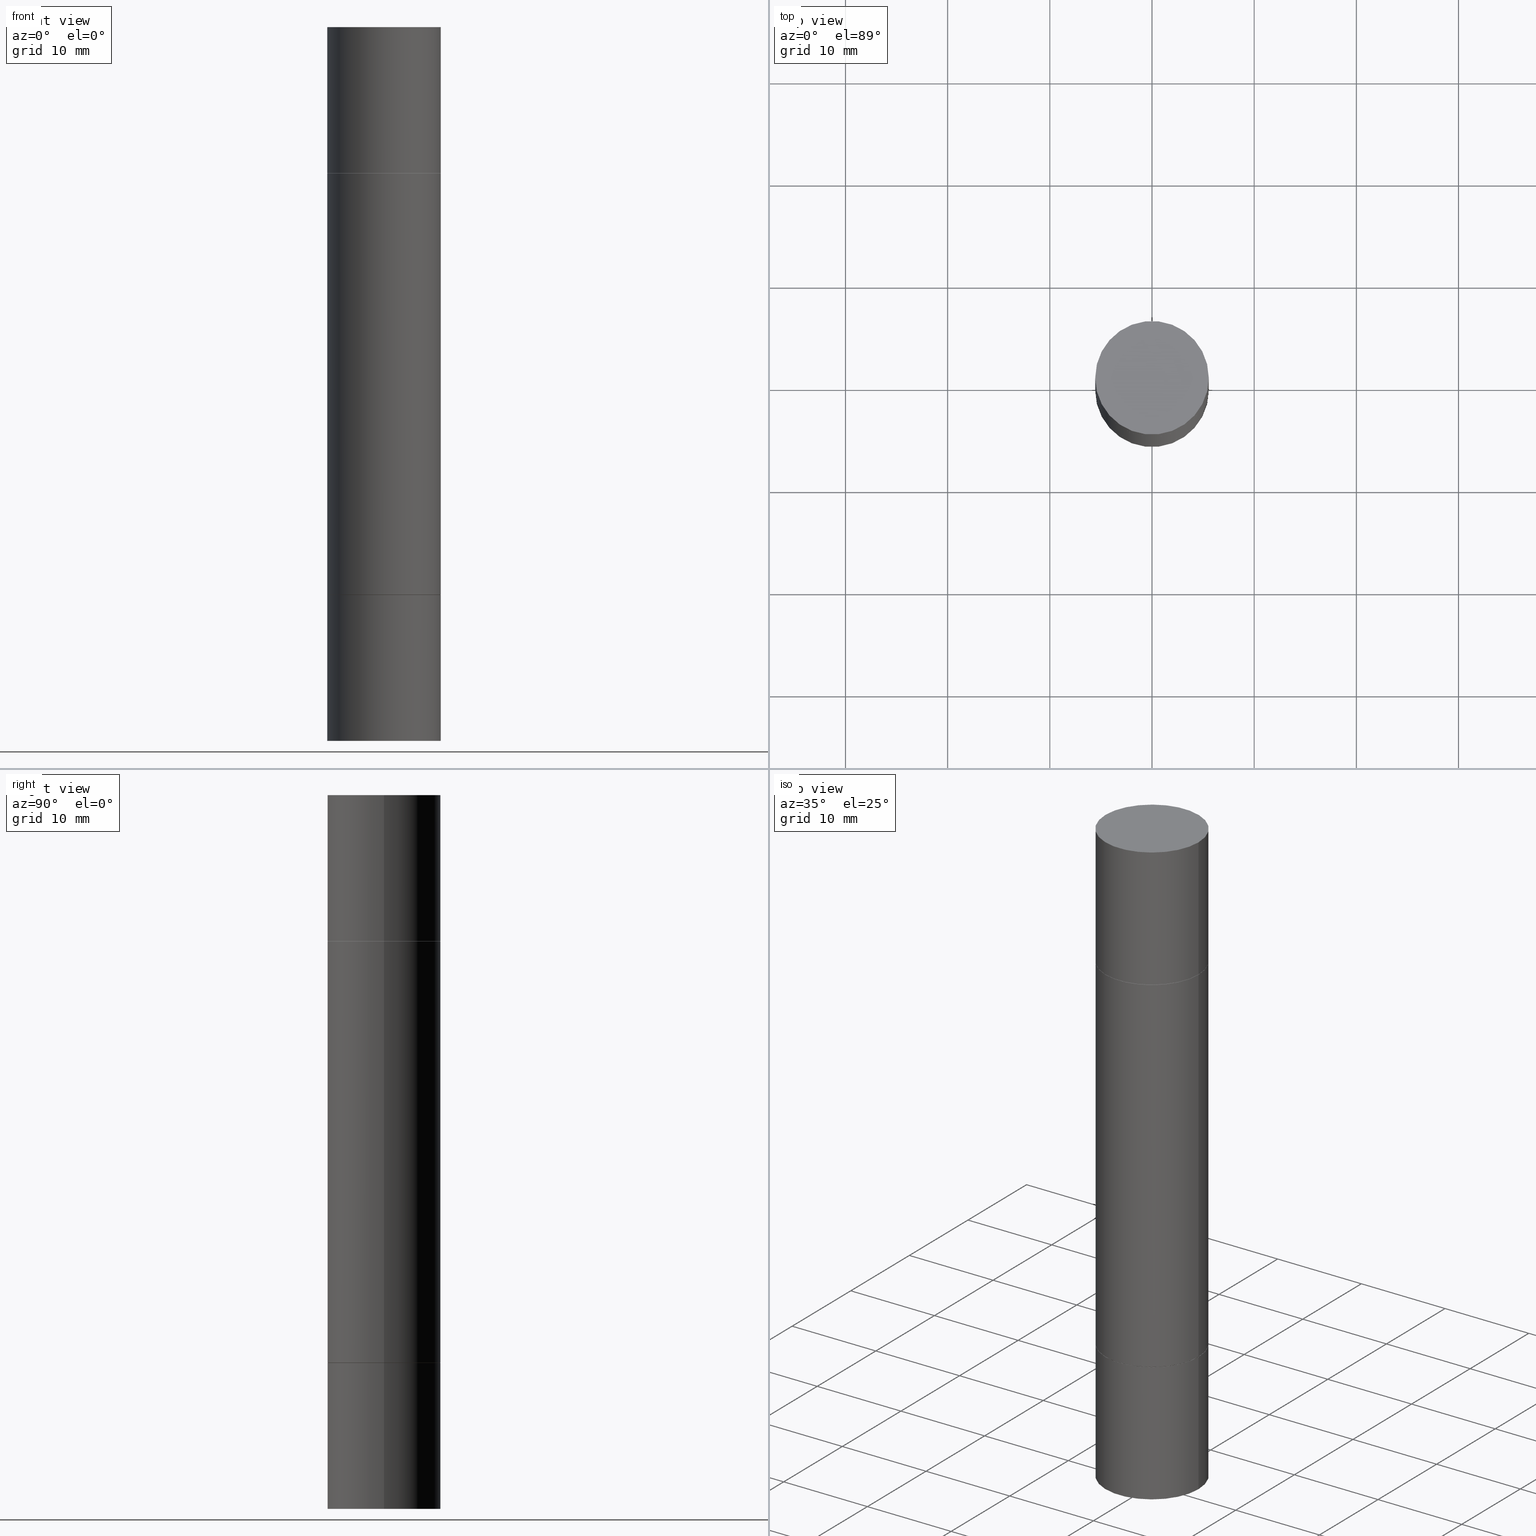
[diagram: canonical four-view strip — front | top / right | iso, engineering-drawing reading convention]
A machine part, canonical four-view strip (front | top / right | iso — engineering-drawing reading convention). The complete STEP part file that produces these views, byte-faithful:
ISO-10303-21;
HEADER;
FILE_DESCRIPTION (( 'STEP AP203' ),
    '1' );
FILE_NAME ('31577.STEP',
    '2024-03-04T15:43:11',
    ( '' ),
    ( '' ),
    'SwSTEP 2.0',
    'SolidWorks 2023',
    '' );
FILE_SCHEMA (( 'CONFIG_CONTROL_DESIGN' ));
ENDSEC;

DATA;
#1 = PLANE ( 'NONE',  #549 ) ;
#2 = DIRECTION ( 'NONE',  ( -2.445468806185136597E-29, -3.492890411551752677E-15, -1.000000000000000000 ) ) ;
#3 = CIRCLE ( 'NONE', #115, 0.2177499999999999991 ) ;
#4 = ORIENTED_EDGE ( 'NONE', *, *, #633, .T. ) ;
#5 = FACE_OUTER_BOUND ( 'NONE', #644, .T. ) ;
#6 = DIRECTION ( 'NONE',  ( -2.445468806185136597E-29, -3.492890411551752677E-15, -1.000000000000000000 ) ) ;
#7 = ORIENTED_EDGE ( 'NONE', *, *, #562, .F. ) ;
#8 = CARTESIAN_POINT ( 'NONE',  ( 0.2187500000000000000, -3.488590022061618704E-15, -0.5619999999999996110 ) ) ;
#9 = FACE_OUTER_BOUND ( 'NONE', #105, .T. ) ;
#10 = ORIENTED_EDGE ( 'NONE', *, *, #337, .T. ) ;
#11 = DIRECTION ( 'NONE',  ( 2.445468806185136597E-29, 3.492890411551752677E-15, 1.000000000000000000 ) ) ;
#12 = ADVANCED_FACE ( 'NONE', ( #432 ), #635, .F. ) ;
#13 = CARTESIAN_POINT ( 'NONE',  ( 0.2177499999999999991, -9.159901292454986579E-15, -2.187999999999999723 ) ) ;
#14 = AXIS2_PLACEMENT_3D ( 'NONE', #317, #163, #428 ) ;
#15 = EDGE_LOOP ( 'NONE', ( #368, #199 ) ) ;
#16 = CIRCLE ( 'NONE', #43, 0.2177499999999999991 ) ;
#17 = DIRECTION ( 'NONE',  ( -2.445468806185136597E-29, -3.492890411551752677E-15, -1.000000000000000000 ) ) ;
#18 = DIRECTION ( 'NONE',  ( -1.000000000000000000, 6.982962677686265922E-15, -9.839502134516470631E-33 ) ) ;
#19 = ADVANCED_FACE ( 'NONE', ( #405 ), #506, .T. ) ;
#20 = EDGE_LOOP ( 'NONE', ( #567, #7, #48, #522 ) ) ;
#21 = DIRECTION ( 'NONE',  ( 2.445468806185136597E-29, 3.492890411551752677E-15, 1.000000000000000000 ) ) ;
#22 = DIRECTION ( 'NONE',  ( -1.000000000000000000, 6.982962677686265922E-15, -9.839502134516470631E-33 ) ) ;
#23 = CARTESIAN_POINT ( 'NONE',  ( 6.725039217009124520E-29, 1.937474974335603146E-18, 5.463695987328526437E-16 ) ) ;
#24 = DIRECTION ( 'NONE',  ( 1.000000000000000000, -6.982962677686262766E-15, 0.000000000000000000 ) ) ;
#25 = CONICAL_SURFACE ( 'NONE', #569, 0.2177499999999999991, 0.7853981633973970977 ) ;
#26 = ADVANCED_FACE ( 'NONE', ( #72 ), #382, .T. ) ;
#27 = AXIS2_PLACEMENT_3D ( 'NONE', #450, #336, #285 ) ;
#28 = CARTESIAN_POINT ( 'NONE',  ( 0.2187499999999999445, -3.492082912473170057E-15, -0.5629999999999997229 ) ) ;
#29 = APPROVAL_STATUS ( 'not_yet_approved' ) ;
#30 = CARTESIAN_POINT ( 'NONE',  ( 1.527523085743924091E-15, 0.2187499999999980294, -0.5620000000000004992 ) ) ;
#31 = PERSON_AND_ORGANIZATION ( #442, #92 ) ;
#32 = CARTESIAN_POINT ( 'NONE',  ( 1.527523085743937699E-15, 0.2187500000000000000, -5.463695987328526437E-16 ) ) ;
#33 = AXIS2_PLACEMENT_3D ( 'NONE', #345, #342, #660 ) ;
#34 = AXIS2_PLACEMENT_3D ( 'NONE', #477, #310, #58 ) ;
#35 = AXIS2_PLACEMENT_3D ( 'NONE', #444, #553, #400 ) ;
#36 = CARTESIAN_POINT ( 'NONE',  ( 0.000000000000000000, 0.000000000000000000, 0.000000000000000000 ) ) ;
#37 = ORIENTED_EDGE ( 'NONE', *, *, #254, .T. ) ;
#38 = ORIENTED_EDGE ( 'NONE', *, *, #551, .F. ) ;
#39 = MANIFOLD_SOLID_BREP ( 'Body-Move/Copy2[1]', #504 ) ;
#40 = ORIENTED_EDGE ( 'NONE', *, *, #269, .F. ) ;
#41 = EDGE_CURVE ( 'NONE', #315, #543, #555, .T. ) ;
#42 = VECTOR ( 'NONE', #596, 39.37007874015748143 ) ;
#43 = AXIS2_PLACEMENT_3D ( 'NONE', #273, #489, #620 ) ;
#44 = VECTOR ( 'NONE', #332, 39.37007874015748143 ) ;
#45 = VERTEX_POINT ( 'NONE', #137 ) ;
#46 = CYLINDRICAL_SURFACE ( 'NONE', #311, 0.2187499999999998612 ) ;
#47 = DIRECTION ( 'NONE',  ( 1.000000000000000000, -6.982962677686266711E-15, 0.000000000000000000 ) ) ;
#48 = ORIENTED_EDGE ( 'NONE', *, *, #568, .T. ) ;
#49 = CARTESIAN_POINT ( 'NONE',  ( 5.348240279126892383E-29, -7.635869688049957955E-15, -2.186999999999999833 ) ) ;
#50 = DIRECTION ( 'NONE',  ( 0.000000000000000000, 3.492185875197449524E-15, 1.000000000000000000 ) ) ;
#51 = ORIENTED_EDGE ( 'NONE', *, *, #676, .F. ) ;
#52 = DIRECTION ( 'NONE',  ( 0.000000000000000000, 1.000000000000000000, -3.746534391310991923E-15 ) ) ;
#53 = CARTESIAN_POINT ( 'NONE',  ( 5.350685747933077986E-29, -1.961066936317747467E-15, -0.5619999999999996110 ) ) ;
#54 = AXIS2_PLACEMENT_3D ( 'NONE', #656, #652, #241 ) ;
#55 = AXIS2_PLACEMENT_3D ( 'NONE', #75, #284, #188 ) ;
#56 = VECTOR ( 'NONE', #526, 39.37007874015748143 ) ;
#57 = ORIENTED_EDGE ( 'NONE', *, *, #657, .T. ) ;
#58 = DIRECTION ( 'NONE',  ( 1.000000000000000000, -6.982962677686269077E-15, 0.000000000000000000 ) ) ;
#59 = CARTESIAN_POINT ( 'NONE',  ( -0.2187500000000000000, -7.066155191128507043E-15, -2.187999999999999723 ) ) ;
#60 = ORIENTED_EDGE ( 'NONE', *, *, #490, .F. ) ;
#61 = DIRECTION ( 'NONE',  ( -2.445468806185136877E-29, -3.492890411551753071E-15, -1.000000000000000000 ) ) ;
#62 = DIRECTION ( 'NONE',  ( -1.000000000000000000, 6.982962677686265922E-15, -4.876176775795935793E-29 ) ) ;
#63 = ORIENTED_EDGE ( 'NONE', *, *, #74, .T. ) ;
#64 = DIRECTION ( 'NONE',  ( -2.445468806185136597E-29, -3.492890411551752677E-15, -1.000000000000000000 ) ) ;
#65 = ADVANCED_FACE ( 'NONE', ( #238 ), #133, .T. ) ;
#66 = PLANE ( 'NONE',  #597 ) ;
#67 = ORIENTED_EDGE ( 'NONE', *, *, #254, .F. ) ;
#68 = CIRCLE ( 'NONE', #588, 0.2187500000000000000 ) ;
#69 = DIRECTION ( 'NONE',  ( 1.000000000000000000, -6.982962677686266711E-15, 0.000000000000000000 ) ) ;
#70 = CIRCLE ( 'NONE', #352, 0.2187500000000000000 ) ;
#71 = CC_DESIGN_DATE_AND_TIME_ASSIGNMENT ( #136, #360, ( #126 ) ) ;
#72 = FACE_OUTER_BOUND ( 'NONE', #577, .T. ) ;
#73 = FACE_OUTER_BOUND ( 'NONE', #458, .T. ) ;
#74 = EDGE_CURVE ( 'NONE', #260, #249, #265, .T. ) ;
#75 = CARTESIAN_POINT ( 'NONE',  ( 5.350685747933077986E-29, -1.961066936317747467E-15, -0.5619999999999996110 ) ) ;
#76 = CARTESIAN_POINT ( 'NONE',  ( -0.2187499999999998612, -1.881939396806789345E-15, -1.374999999999999778 ) ) ;
#77 = DIRECTION ( 'NONE',  ( 1.000000000000000000, -6.982962677686266711E-15, 4.876176775795935232E-29 ) ) ;
#78 = APPROVAL_DATE_TIME ( #306, #474 ) ;
#79 =( CONVERSION_BASED_UNIT ( 'INCH', #219 ) LENGTH_UNIT ( ) NAMED_UNIT ( #116 ) );
#80 = CIRCLE ( 'NONE', #639, 0.2187499999999999445 ) ;
#81 = ORIENTED_EDGE ( 'NONE', *, *, #321, .F. ) ;
#82 = CIRCLE ( 'NONE', #27, 0.2177499999999999991 ) ;
#83 = DIRECTION ( 'NONE',  ( 2.438088387897959769E-29, 3.492890411551753071E-15, 1.000000000000000000 ) ) ;
#84 = PERSON_AND_ORGANIZATION ( #442, #92 ) ;
#85 = EDGE_LOOP ( 'NONE', ( #153, #263 ) ) ;
#86 = CARTESIAN_POINT ( 'NONE',  ( 0.2177499999999999991, -9.159901292454986579E-15, -2.187999999999999723 ) ) ;
#87 = SHAPE_DEFINITION_REPRESENTATION ( #665, #475 ) ;
#88 = EDGE_CURVE ( 'NONE', #377, #278, #292, .T. ) ;
#89 = DIRECTION ( 'NONE',  ( -0.7071067811865112684, 7.493145998870223209E-15, 0.7071067811865837660 ) ) ;
#90 = PERSON_AND_ORGANIZATION ( #442, #92 ) ;
#91 = AXIS2_PLACEMENT_3D ( 'NONE', #266, #166, #258 ) ;
#92 = ORGANIZATION ( 'UNSPECIFIED', 'UNSPECIFIED', '' ) ;
#93 = CALENDAR_DATE ( 2024, 4, 3 ) ;
#94 = EDGE_LOOP ( 'NONE', ( #103, #503, #679, #469 ) ) ;
#95 = ADVANCED_FACE ( 'NONE', ( #563 ), #297, .F. ) ;
#96 = ORIENTED_EDGE ( 'NONE', *, *, #162, .T. ) ;
#97 = CC_DESIGN_PERSON_AND_ORGANIZATION_ASSIGNMENT ( #84, #614, ( #126 ) ) ;
#98 = CARTESIAN_POINT ( 'NONE',  ( 0.000000000000000000, -9.603511156792982543E-15, -2.749999999999999556 ) ) ;
#99 = VERTEX_POINT ( 'NONE', #28 ) ;
#100 = LINE ( 'NONE', #314, #56 ) ;
#101 = AXIS2_PLACEMENT_3D ( 'NONE', #98, #366, #113 ) ;
#102 = VECTOR ( 'NONE', #650, 39.37007874015748143 ) ;
#103 = ORIENTED_EDGE ( 'NONE', *, *, #666, .F. ) ;
#104 = CARTESIAN_POINT ( 'NONE',  ( 6.725039217009124520E-29, 1.937474974335603146E-18, 5.463695987328526437E-16 ) ) ;
#105 = EDGE_LOOP ( 'NONE', ( #60, #224 ) ) ;
#106 = EDGE_CURVE ( 'NONE', #519, #380, #598, .T. ) ;
#107 = MANIFOLD_SOLID_BREP ( 'Mirror1[3]', #243 ) ;
#108 = DIRECTION ( 'NONE',  ( 2.445468806185136597E-29, 3.492890411551752677E-15, 1.000000000000000000 ) ) ;
#109 = ORIENTED_EDGE ( 'NONE', *, *, #424, .T. ) ;
#110 = LINE ( 'NONE', #483, #625 ) ;
#111 = DIRECTION ( 'NONE',  ( 1.000000000000000000, -6.982962677686262766E-15, 0.000000000000000000 ) ) ;
#112 = ORIENTED_EDGE ( 'NONE', *, *, #88, .F. ) ;
#113 = DIRECTION ( 'NONE',  ( 1.000000000000000000, -6.982962677686267499E-15, 0.000000000000000000 ) ) ;
#114 = DIRECTION ( 'NONE',  ( 1.000000000000000000, -6.982962677686266711E-15, 0.000000000000000000 ) ) ;
#115 = AXIS2_PLACEMENT_3D ( 'NONE', #320, #478, #532 ) ;
#116 = DIMENSIONAL_EXPONENTS ( 1.000000000000000000, 0.000000000000000000, 0.000000000000000000, 0.000000000000000000, 0.000000000000000000, 0.000000000000000000, 0.000000000000000000 ) ;
#117 = VERTEX_POINT ( 'NONE', #142 ) ;
#118 = CARTESIAN_POINT ( 'NONE',  ( 5.350685747933077986E-29, -1.961066936317747467E-15, -0.5619999999999996110 ) ) ;
#119 = FACE_OUTER_BOUND ( 'NONE', #668, .T. ) ;
#120 = ORIENTED_EDGE ( 'NONE', *, *, #287, .T. ) ;
#121 = ADVANCED_FACE ( 'NONE', ( #511 ), #459, .T. ) ;
#122 = LINE ( 'NONE', #640, #44 ) ;
#123 = FACE_OUTER_BOUND ( 'NONE', #349, .T. ) ;
#124 = ORIENTED_EDGE ( 'NONE', *, *, #269, .T. ) ;
#125 = DIRECTION ( 'NONE',  ( 1.000000000000000000, -6.982962677686266711E-15, 0.000000000000000000 ) ) ;
#126 = PRODUCT_DEFINITION ( 'UNKNOWN', '', #473, #651 ) ;
#127 = CLOSED_SHELL ( 'NONE', ( #392, #632, #196, #12, #121, #413, #26, #586 ) ) ;
#128 = FACE_OUTER_BOUND ( 'NONE', #476, .T. ) ;
#129 = AXIS2_PLACEMENT_3D ( 'NONE', #374, #158, #584 ) ;
#130 = CARTESIAN_POINT ( 'NONE',  ( -0.2177499999999999991, -4.655096935098871103E-16, -0.5619999999999996110 ) ) ;
#131 = CC_DESIGN_APPROVAL ( #221, ( #126 ) ) ;
#132 = ADVANCED_FACE ( 'NONE', ( #288 ), #230, .F. ) ;
#133 = PLANE ( 'NONE',  #624 ) ;
#134 = LINE ( 'NONE', #289, #235 ) ;
#135 = DIRECTION ( 'NONE',  ( 1.000000000000000000, -6.982962677686262766E-15, 0.000000000000000000 ) ) ;
#136 = DATE_AND_TIME ( #193, #416 ) ;
#137 = CARTESIAN_POINT ( 'NONE',  ( -0.2187500000000000000, 5.211692063408171100E-16, -0.5619999999999996110 ) ) ;
#138 = COORDINATED_UNIVERSAL_TIME_OFFSET ( 5, 0, .BEHIND. ) ;
#139 = CLOSED_SHELL ( 'NONE', ( #401, #216, #180, #509, #283, #152 ) ) ;
#140 = AXIS2_PLACEMENT_3D ( 'NONE', #491, #434, #637 ) ;
#141 = APPROVAL_PERSON_ORGANIZATION ( #90, #474, #247 ) ;
#142 = CARTESIAN_POINT ( 'NONE',  ( -0.2177499999999999991, -6.086855907922961200E-15, -2.187999999999999723 ) ) ;
#143 = ADVANCED_FACE ( 'NONE', ( #502 ), #240, .T. ) ;
#144 = DIRECTION ( 'NONE',  ( -2.445468806185136597E-29, 3.491481338843145583E-15, 1.000000000000000000 ) ) ;
#145 = APPROVAL_STATUS ( 'not_yet_approved' ) ;
#146 = ORIENTED_EDGE ( 'NONE', *, *, #106, .T. ) ;
#147 = CC_DESIGN_PERSON_AND_ORGANIZATION_ASSIGNMENT ( #507, #301, ( #516 ) ) ;
#148 = DIRECTION ( 'NONE',  ( 1.000000000000000000, 0.000000000000000000, 0.000000000000000000 ) ) ;
#149 = EDGE_LOOP ( 'NONE', ( #594, #10, #391, #330 ) ) ;
#150 = AXIS2_PLACEMENT_3D ( 'NONE', #552, #605, #186 ) ;
#151 = CIRCLE ( 'NONE', #414, 0.2187500000000000000 ) ;
#152 = ADVANCED_FACE ( 'NONE', ( #300 ), #514, .T. ) ;
#153 = ORIENTED_EDGE ( 'NONE', *, *, #562, .T. ) ;
#154 = DIRECTION ( 'NONE',  ( -2.445468806185136597E-29, -3.492890411551752677E-15, -1.000000000000000000 ) ) ;
#155 = DIRECTION ( 'NONE',  ( 1.000000000000000000, -6.982962677686266711E-15, 0.000000000000000000 ) ) ;
#156 = EDGE_CURVE ( 'NONE', #607, #99, #462, .T. ) ;
#157 = ORIENTED_EDGE ( 'NONE', *, *, #356, .T. ) ;
#158 = DIRECTION ( 'NONE',  ( -2.445468806185136597E-29, 3.491481338843145583E-15, 1.000000000000000000 ) ) ;
#159 = FACE_OUTER_BOUND ( 'NONE', #304, .T. ) ;
#160 = CIRCLE ( 'NONE', #305, 0.2187500000000000000 ) ;
#161 = DIRECTION ( 'NONE',  ( 1.000000000000000000, -6.982962677686267499E-15, 0.000000000000000000 ) ) ;
#162 = EDGE_CURVE ( 'NONE', #638, #315, #338, .T. ) ;
#163 = DIRECTION ( 'NONE',  ( 2.445468806185136597E-29, 3.492890411551752677E-15, 1.000000000000000000 ) ) ;
#164 = EDGE_LOOP ( 'NONE', ( #207, #4, #218, #615 ) ) ;
#165 = DIRECTION ( 'NONE',  ( -1.000000000000000000, 6.982962677686265922E-15, -4.876176775795935793E-29 ) ) ;
#166 = DIRECTION ( 'NONE',  ( 2.445468806185136597E-29, 3.492890411551752677E-15, 1.000000000000000000 ) ) ;
#167 = ORIENTED_EDGE ( 'NONE', *, *, #529, .T. ) ;
#168 = CARTESIAN_POINT ( 'NONE',  ( 5.348240279126892383E-29, -1.964559826729300003E-15, -0.5629999999999997229 ) ) ;
#169 = CARTESIAN_POINT ( 'NONE',  ( 0.2187500000000000000, -1.525585610769535201E-15, 5.463695987328526437E-16 ) ) ;
#170 = AXIS2_PLACEMENT_3D ( 'NONE', #30, #83, #347 ) ;
#171 = VECTOR ( 'NONE', #89, 39.37007874015748143 ) ;
#172 = LOCAL_TIME ( 10, 43, 11.00000000000000000, #138 ) ;
#173 = EDGE_LOOP ( 'NONE', ( #443, #214, #296, #560 ) ) ;
#174 = DIRECTION ( 'NONE',  ( -2.445468806185136597E-29, 3.491481338843145583E-15, 1.000000000000000000 ) ) ;
#175 = DIRECTION ( 'NONE',  ( 2.445468806185136597E-29, 3.492890411551752677E-15, 1.000000000000000000 ) ) ;
#176 = EDGE_LOOP ( 'NONE', ( #479, #618, #228, #530 ) ) ;
#177 = CARTESIAN_POINT ( 'NONE',  ( -0.2187500000000000000, 5.211692063408169128E-16, 5.463695987328561936E-16 ) ) ;
#178 = CARTESIAN_POINT ( 'NONE',  ( 1.527523085743937699E-15, 0.2187499999999903966, -2.750000000000000444 ) ) ;
#179 = CARTESIAN_POINT ( 'NONE',  ( 0.2177499999999999991, -3.481607059383932295E-15, -0.5619999999999996110 ) ) ;
#180 = ADVANCED_FACE ( 'NONE', ( #128 ), #181, .F. ) ;
#181 = PLANE ( 'NONE',  #189 ) ;
#182 = CIRCLE ( 'NONE', #91, 0.2187499999999999445 ) ;
#183 = DIRECTION ( 'NONE',  ( -2.445468806185136597E-29, 3.491481338843145583E-15, 1.000000000000000000 ) ) ;
#184 = VECTOR ( 'NONE', #556, 39.37007874015748143 ) ;
#185 = CARTESIAN_POINT ( 'NONE',  ( 6.725039217009124520E-29, 1.937474974335603146E-18, 5.463695987328526437E-16 ) ) ;
#186 = DIRECTION ( 'NONE',  ( 1.000000000000000000, -6.982962677686266711E-15, 0.000000000000000000 ) ) ;
#187 = PERSON_AND_ORGANIZATION_ROLE ( 'design_supplier' ) ;
#188 = DIRECTION ( 'NONE',  ( 1.000000000000000000, -6.982962677686266711E-15, 0.000000000000000000 ) ) ;
#189 = AXIS2_PLACEMENT_3D ( 'NONE', #528, #50, #629 ) ;
#190 = AXIS2_PLACEMENT_3D ( 'NONE', #168, #537, #525 ) ;
#191 = ORIENTED_EDGE ( 'NONE', *, *, #643, .F. ) ;
#192 = DIRECTION ( 'NONE',  ( 2.445468806185136597E-29, 3.492890411551752677E-15, 1.000000000000000000 ) ) ;
#193 = CALENDAR_DATE ( 2024, 4, 3 ) ;
#194 = ORIENTED_EDGE ( 'NONE', *, *, #461, .F. ) ;
#195 = EDGE_CURVE ( 'NONE', #626, #335, #523, .T. ) ;
#196 = ADVANCED_FACE ( 'NONE', ( #538 ), #608, .T. ) ;
#197 = ORIENTED_EDGE ( 'NONE', *, *, #548, .T. ) ;
#198 = AXIS2_PLACEMENT_3D ( 'NONE', #622, #636, #204 ) ;
#199 = ORIENTED_EDGE ( 'NONE', *, *, #513, .T. ) ;
#200 = APPLICATION_CONTEXT ( 'configuration controlled 3d designs of mechanical parts and assemblies' ) ;
#201 = CARTESIAN_POINT ( 'NONE',  ( 5.350685747933077986E-29, -7.639361169388800962E-15, -2.187999999999999723 ) ) ;
#202 = EDGE_CURVE ( 'NONE', #272, #543, #222, .T. ) ;
#203 = ORIENTED_EDGE ( 'NONE', *, *, #331, .F. ) ;
#204 = DIRECTION ( 'NONE',  ( 1.000000000000000000, -6.982962677686266711E-15, 0.000000000000000000 ) ) ;
#205 = CARTESIAN_POINT ( 'NONE',  ( 5.350685747933077986E-29, -1.961066936317747467E-15, -0.5619999999999996110 ) ) ;
#206 = ADVANCED_FACE ( 'NONE', ( #376 ), #667, .T. ) ;
#207 = ORIENTED_EDGE ( 'NONE', *, *, #356, .F. ) ;
#208 = FACE_OUTER_BOUND ( 'NONE', #418, .T. ) ;
#209 = CARTESIAN_POINT ( 'NONE',  ( -0.2177499999999999991, -6.092154362271183602E-15, -2.187999999999999723 ) ) ;
#210 = VECTOR ( 'NONE', #333, 39.37007874015748143 ) ;
#211 = ORIENTED_EDGE ( 'NONE', *, *, #548, .F. ) ;
#212 = CARTESIAN_POINT ( 'NONE',  ( 0.2187500000000000000, -1.113103424253685260E-14, -2.749999999999999556 ) ) ;
#213 = DIRECTION ( 'NONE',  ( -2.445468806185136597E-29, 3.491481338843145583E-15, 1.000000000000000000 ) ) ;
#214 = ORIENTED_EDGE ( 'NONE', *, *, #499, .F. ) ;
#215 = CARTESIAN_POINT ( 'NONE',  ( 0.2187500000000000000, -3.488590022061618704E-15, -0.5619999999999996110 ) ) ;
#216 = ADVANCED_FACE ( 'NONE', ( #515 ), #25, .T. ) ;
#217 = FACE_OUTER_BOUND ( 'NONE', #173, .T. ) ;
#218 = ORIENTED_EDGE ( 'NONE', *, *, #676, .T. ) ;
#219 = LENGTH_MEASURE_WITH_UNIT ( LENGTH_MEASURE( 0.02539999999999999897 ), #453 );
#220 = CARTESIAN_POINT ( 'NONE',  ( -0.2187500000000000000, 1.554312234475219157E-15, -1.076017050993260622E-29 ) ) ;
#221 = APPROVAL ( #145, 'UNSPECIFIED' ) ;
#222 = CIRCLE ( 'NONE', #14, 0.2187500000000000000 ) ;
#223 = VECTOR ( 'NONE', #445, 39.37007874015748143 ) ;
#224 = ORIENTED_EDGE ( 'NONE', *, *, #633, .F. ) ;
#225 = PLANE ( 'NONE',  #35 ) ;
#226 = PLANE ( 'NONE',  #609 ) ;
#227 = EDGE_CURVE ( 'NONE', #249, #260, #151, .T. ) ;
#228 = ORIENTED_EDGE ( 'NONE', *, *, #449, .T. ) ;
#229 = CARTESIAN_POINT ( 'NONE',  ( 0.2187500000000000000, -1.527523085743870843E-15, 1.066663669705360885E-29 ) ) ;
#230 = PLANE ( 'NONE',  #253 ) ;
#231 = FACE_OUTER_BOUND ( 'NONE', #492, .T. ) ;
#232 = AXIS2_PLACEMENT_3D ( 'NONE', #262, #431, #680 ) ;
#233 = CIRCLE ( 'NONE', #190, 0.2187499999999999445 ) ;
#234 = CARTESIAN_POINT ( 'NONE',  ( 5.350685747933077986E-29, -7.639361169388800962E-15, -2.187999999999999723 ) ) ;
#235 = VECTOR ( 'NONE', #282, 39.37007874015748143 ) ;
#236 = CARTESIAN_POINT ( 'NONE',  ( 5.350685747933077986E-29, -7.639361169388800962E-15, -2.187999999999999723 ) ) ;
#237 = CIRCLE ( 'NONE', #408, 0.2187499999999999445 ) ;
#238 = FACE_OUTER_BOUND ( 'NONE', #15, .T. ) ;
#239 = APPROVAL_ROLE ( '' ) ;
#240 = CYLINDRICAL_SURFACE ( 'NONE', #359, 0.2187500000000000000 ) ;
#241 = DIRECTION ( 'NONE',  ( 1.000000000000000000, -6.982962677686267499E-15, 0.000000000000000000 ) ) ;
#242 = APPLICATION_PROTOCOL_DEFINITION ( 'international standard', 'config_control_design', 1994, #286 ) ;
#243 = CLOSED_SHELL ( 'NONE', ( #613, #375, #132, #364 ) ) ;
#244 = CIRCLE ( 'NONE', #471, 0.2177499999999999991 ) ;
#245 = CC_DESIGN_APPROVAL ( #466, ( #516 ) ) ;
#246 = CARTESIAN_POINT ( 'NONE',  ( 0.2187499999999999445, -9.163392773793829586E-15, -2.186999999999999833 ) ) ;
#247 = APPROVAL_ROLE ( '' ) ;
#248 = EDGE_CURVE ( 'NONE', #580, #99, #182, .T. ) ;
#249 = VERTEX_POINT ( 'NONE', #565 ) ;
#250 = PERSON_AND_ORGANIZATION_ROLE ( 'creator' ) ;
#251 = EDGE_LOOP ( 'NONE', ( #546, #308, #619, #57 ) ) ;
#252 = ORIENTED_EDGE ( 'NONE', *, *, #295, .F. ) ;
#253 = AXIS2_PLACEMENT_3D ( 'NONE', #557, #399, #448 ) ;
#254 = EDGE_CURVE ( 'NONE', #117, #671, #664, .T. ) ;
#255 = AXIS2_PLACEMENT_3D ( 'NONE', #372, #481, #111 ) ;
#256 = ORIENTED_EDGE ( 'NONE', *, *, #570, .T. ) ;
#257 = CARTESIAN_POINT ( 'NONE',  ( -0.2187500000000000000, -7.066155191128507043E-15, -2.750000000000000000 ) ) ;
#258 = DIRECTION ( 'NONE',  ( 1.000000000000000000, -6.982962677686266711E-15, 0.000000000000000000 ) ) ;
#259 = ADVANCED_FACE ( 'NONE', ( #159 ), #367, .T. ) ;
#260 = VERTEX_POINT ( 'NONE', #59 ) ;
#261 = DIRECTION ( 'NONE',  ( 1.000000000000000000, -6.982962677686269077E-15, 0.000000000000000000 ) ) ;
#262 = CARTESIAN_POINT ( 'NONE',  ( 3.362519608504561700E-29, -4.800786840909324141E-15, -1.374999999999999778 ) ) ;
#263 = ORIENTED_EDGE ( 'NONE', *, *, #312, .T. ) ;
#264 = CARTESIAN_POINT ( 'NONE',  ( 1.527523085743924091E-15, 0.2187499999999923395, -2.188000000000000611 ) ) ;
#265 = CIRCLE ( 'NONE', #470, 0.2187500000000000000 ) ;
#266 = CARTESIAN_POINT ( 'NONE',  ( 5.348240279126892383E-29, -1.964559826729300003E-15, -0.5629999999999997229 ) ) ;
#267 = LOCAL_TIME ( 10, 43, 11.00000000000000000, #411 ) ;
#268 = EDGE_LOOP ( 'NONE', ( #674, #157, #524, #51 ) ) ;
#269 = EDGE_CURVE ( 'NONE', #377, #117, #3, .T. ) ;
#270 = PLANE ( 'NONE',  #673 ) ;
#271 = CARTESIAN_POINT ( 'NONE',  ( 5.350685747933077986E-29, -1.961066936317747467E-15, -0.5619999999999996110 ) ) ;
#272 = VERTEX_POINT ( 'NONE', #303 ) ;
#273 = CARTESIAN_POINT ( 'NONE',  ( 5.350685747933077986E-29, -1.961066936317747467E-15, -0.5619999999999996110 ) ) ;
#274 = DIRECTION ( 'NONE',  ( -2.445468806185136597E-29, 3.491481338843145583E-15, 1.000000000000000000 ) ) ;
#275 = ORIENTED_EDGE ( 'NONE', *, *, #322, .T. ) ;
#276 = FACE_OUTER_BOUND ( 'NONE', #149, .T. ) ;
#277 = CARTESIAN_POINT ( 'NONE',  ( 1.527523085743937699E-15, 0.2187500000000000000, -5.463695987328526437E-16 ) ) ;
#278 = VERTEX_POINT ( 'NONE', #246 ) ;
#279 = CONICAL_SURFACE ( 'NONE', #536, 0.2177499999999999991, 0.7853981633973970977 ) ;
#280 = APPROVAL_PERSON_ORGANIZATION ( #409, #221, #520 ) ;
#281 = ORIENTED_EDGE ( 'NONE', *, *, #461, .T. ) ;
#282 = DIRECTION ( 'NONE',  ( -2.445468806185136877E-29, -3.492890411551753071E-15, -1.000000000000000000 ) ) ;
#283 = ADVANCED_FACE ( 'NONE', ( #484 ), #460, .T. ) ;
#284 = DIRECTION ( 'NONE',  ( -2.445468806185136597E-29, -3.492890411551752677E-15, -1.000000000000000000 ) ) ;
#285 = DIRECTION ( 'NONE',  ( 1.000000000000000000, -6.982962677686266711E-15, 0.000000000000000000 ) ) ;
#286 = APPLICATION_CONTEXT ( 'configuration controlled 3d designs of mechanical parts and assemblies' ) ;
#287 = EDGE_CURVE ( 'NONE', #323, #45, #379, .T. ) ;
#288 = FACE_OUTER_BOUND ( 'NONE', #327, .T. ) ;
#289 = CARTESIAN_POINT ( 'NONE',  ( -0.2187499999999998612, -8.102777219780461591E-15, -2.749999999999999556 ) ) ;
#290 = CLOSED_SHELL ( 'NONE', ( #259, #65, #95, #143 ) ) ;
#291 = CIRCLE ( 'NONE', #383, 0.2187500000000000000 ) ;
#292 = LINE ( 'NONE', #86, #361 ) ;
#293 = PERSON_AND_ORGANIZATION ( #442, #92 ) ;
#294 = DIRECTION ( 'NONE',  ( 1.000000000000000000, -6.982962677686262766E-15, 0.000000000000000000 ) ) ;
#295 = EDGE_CURVE ( 'NONE', #45, #518, #339, .T. ) ;
#296 = ORIENTED_EDGE ( 'NONE', *, *, #41, .T. ) ;
#297 = PLANE ( 'NONE',  #170 ) ;
#298 = APPROVAL_STATUS ( 'not_yet_approved' ) ;
#299 = ORIENTED_EDGE ( 'NONE', *, *, #568, .F. ) ;
#300 = FACE_OUTER_BOUND ( 'NONE', #94, .T. ) ;
#301 = PERSON_AND_ORGANIZATION_ROLE ( 'classification_officer' ) ;
#302 = CC_DESIGN_PERSON_AND_ORGANIZATION_ASSIGNMENT ( #606, #659, ( #645 ) ) ;
#303 = CARTESIAN_POINT ( 'NONE',  ( -0.2187500000000000000, 5.211692063408171100E-16, -0.5619999999999996110 ) ) ;
#304 = EDGE_LOOP ( 'NONE', ( #373, #120, #467, #472 ) ) ;
#305 = AXIS2_PLACEMENT_3D ( 'NONE', #590, #175, #642 ) ;
#306 = DATE_AND_TIME ( #93, #267 ) ;
#307 = VERTEX_POINT ( 'NONE', #621 ) ;
#308 = ORIENTED_EDGE ( 'NONE', *, *, #649, .F. ) ;
#309 = AXIS2_PLACEMENT_3D ( 'NONE', #53, #634, #47 ) ;
#310 = DIRECTION ( 'NONE',  ( -2.445468806185136597E-29, 3.491481338843145583E-15, 1.000000000000000000 ) ) ;
#311 = AXIS2_PLACEMENT_3D ( 'NONE', #419, #154, #161 ) ;
#312 = EDGE_CURVE ( 'NONE', #519, #307, #438, .T. ) ;
#313 = AXIS2_PLACEMENT_3D ( 'NONE', #600, #17, #602 ) ;
#314 = CARTESIAN_POINT ( 'NONE',  ( -0.2187499999999998612, -8.102777219780461591E-15, -2.749999999999999556 ) ) ;
#315 = VERTEX_POINT ( 'NONE', #326 ) ;
#316 = CYLINDRICAL_SURFACE ( 'NONE', #101, 0.2187499999999998612 ) ;
#317 = CARTESIAN_POINT ( 'NONE',  ( 5.350685747933077986E-29, -1.961066936317747467E-15, -0.5619999999999996110 ) ) ;
#318 = ORIENTED_EDGE ( 'NONE', *, *, #649, .T. ) ;
#319 = CARTESIAN_POINT ( 'NONE',  ( 3.362519608504561700E-29, -4.800786840909324141E-15, -1.374999999999999778 ) ) ;
#320 = CARTESIAN_POINT ( 'NONE',  ( 5.350685747933077986E-29, -7.639361169388800962E-15, -2.187999999999999723 ) ) ;
#321 = EDGE_CURVE ( 'NONE', #543, #272, #494, .T. ) ;
#322 = EDGE_CURVE ( 'NONE', #380, #671, #100, .T. ) ;
#323 = VERTEX_POINT ( 'NONE', #487 ) ;
#324 = LINE ( 'NONE', #212, #427 ) ;
#325 = CIRCLE ( 'NONE', #198, 0.2187499999999999445 ) ;
#326 = CARTESIAN_POINT ( 'NONE',  ( 0.2187500000000000000, -1.525585610769535201E-15, 5.463695987328526437E-16 ) ) ;
#327 = EDGE_LOOP ( 'NONE', ( #81, #539 ) ) ;
#328 = DIRECTION ( 'NONE',  ( 1.000000000000000000, -6.982962677686266711E-15, 0.000000000000000000 ) ) ;
#329 = CARTESIAN_POINT ( 'NONE',  ( 0.2187499999999998612, -4.910196419563181534E-15, -1.374999999999999778 ) ) ;
#330 = ORIENTED_EDGE ( 'NONE', *, *, #41, .F. ) ;
#331 = EDGE_CURVE ( 'NONE', #518, #45, #160, .T. ) ;
#332 = DIRECTION ( 'NONE',  ( -0.7071067811865112684, 2.381258160590891430E-15, -0.7071067811865837660 ) ) ;
#333 = DIRECTION ( 'NONE',  ( -2.445468806185136877E-29, -3.492890411551753071E-15, -1.000000000000000000 ) ) ;
#334 = ORIENTED_EDGE ( 'NONE', *, *, #499, .T. ) ;
#335 = VERTEX_POINT ( 'NONE', #329 ) ;
#336 = DIRECTION ( 'NONE',  ( 2.445468806185136597E-29, 3.492890411551752677E-15, 1.000000000000000000 ) ) ;
#337 = EDGE_CURVE ( 'NONE', #638, #272, #389, .T. ) ;
#338 = CIRCLE ( 'NONE', #437, 0.2187500000000000000 ) ;
#339 = CIRCLE ( 'NONE', #505, 0.2187500000000000000 ) ;
#340 = CIRCLE ( 'NONE', #641, 0.2177499999999999991 ) ;
#341 = UNCERTAINTY_MEASURE_WITH_UNIT (LENGTH_MEASURE( 1.000000000000000082E-05 ), #79, 'distance_accuracy_value', 'NONE');
#342 = DIRECTION ( 'NONE',  ( -2.438088387897959769E-29, -3.492890411551753071E-15, -1.000000000000000000 ) ) ;
#343 = CARTESIAN_POINT ( 'NONE',  ( 0.2187499999999998612, -1.113103424253685260E-14, -2.749999999999999556 ) ) ;
#344 = PRODUCT_RELATED_PRODUCT_CATEGORY ( 'detail', '', ( #645 ) ) ;
#345 = CARTESIAN_POINT ( 'NONE',  ( 5.350685747933077986E-29, -1.961066936317747467E-15, -0.5619999999999996110 ) ) ;
#346 = CARTESIAN_POINT ( 'NONE',  ( 6.725039217009124520E-29, -9.601573681818649859E-15, -2.750000000000000000 ) ) ;
#347 = DIRECTION ( 'NONE',  ( -1.000000000000000000, 6.982962677686265922E-15, -9.839502134516470631E-33 ) ) ;
#348 = SECURITY_CLASSIFICATION_LEVEL ( 'unclassified' ) ;
#349 = EDGE_LOOP ( 'NONE', ( #334, #96 ) ) ;
#350 = VECTOR ( 'NONE', #61, 39.37007874015748143 ) ;
#351 = DIRECTION ( 'NONE',  ( -0.7071067811865112684, 2.381258160590891430E-15, -0.7071067811865837660 ) ) ;
#352 = AXIS2_PLACEMENT_3D ( 'NONE', #346, #183, #294 ) ;
#353 = DATE_TIME_ROLE ( 'classification_date' ) ;
#354 = CARTESIAN_POINT ( 'NONE',  ( -0.2177499999999999991, -4.671934973029966481E-16, -0.5619999999999996110 ) ) ;
#355 = APPROVAL_DATE_TIME ( #661, #466 ) ;
#356 = EDGE_CURVE ( 'NONE', #429, #260, #545, .T. ) ;
#357 = MANIFOLD_SOLID_BREP ( 'Mirror1[4]', #290 ) ;
#358 = DIRECTION ( 'NONE',  ( 1.000000000000000000, -6.982962677686262766E-15, 0.000000000000000000 ) ) ;
#359 = AXIS2_PLACEMENT_3D ( 'NONE', #457, #407, #24 ) ;
#360 = DATE_TIME_ROLE ( 'creation_date' ) ;
#361 = VECTOR ( 'NONE', #561, 39.37007874015748143 ) ;
#362 = ORIENTED_EDGE ( 'NONE', *, *, #88, .T. ) ;
#363 = AXIS2_PLACEMENT_3D ( 'NONE', #572, #192, #612 ) ;
#364 = ADVANCED_FACE ( 'NONE', ( #217 ), #593, .T. ) ;
#365 = VERTEX_POINT ( 'NONE', #169 ) ;
#366 = DIRECTION ( 'NONE',  ( -2.445468806185136597E-29, -3.492890411551752677E-15, -1.000000000000000000 ) ) ;
#367 = CYLINDRICAL_SURFACE ( 'NONE', #255, 0.2187500000000000000 ) ;
#368 = ORIENTED_EDGE ( 'NONE', *, *, #604, .T. ) ;
#369 = DIRECTION ( 'NONE',  ( 1.000000000000000000, -6.982962677686266711E-15, 0.000000000000000000 ) ) ;
#370 = CIRCLE ( 'NONE', #129, 0.2187500000000000000 ) ;
#371 = APPROVAL_PERSON_ORGANIZATION ( #31, #466, #239 ) ;
#372 = CARTESIAN_POINT ( 'NONE',  ( 0.000000000000000000, -9.603511156792982543E-15, -2.749999999999999556 ) ) ;
#373 = ORIENTED_EDGE ( 'NONE', *, *, #513, .F. ) ;
#374 = CARTESIAN_POINT ( 'NONE',  ( 6.725039217009124520E-29, -9.601573681818649859E-15, -2.750000000000000000 ) ) ;
#375 = ADVANCED_FACE ( 'NONE', ( #123 ), #66, .T. ) ;
#376 = FACE_OUTER_BOUND ( 'NONE', #164, .T. ) ;
#377 = VERTEX_POINT ( 'NONE', #13 ) ;
#378 = DIRECTION ( 'NONE',  ( -0.000000000000000000, -3.492185875197449130E-15, -1.000000000000000000 ) ) ;
#379 = LINE ( 'NONE', #420, #654 ) ;
#380 = VERTEX_POINT ( 'NONE', #384 ) ;
#381 = CARTESIAN_POINT ( 'NONE',  ( 6.725039217009124520E-29, 1.937474974335603146E-18, 5.463695987328526437E-16 ) ) ;
#382 = CONICAL_SURFACE ( 'NONE', #150, 0.2177499999999999991, 0.7853981633973970977 ) ;
#383 = AXIS2_PLACEMENT_3D ( 'NONE', #104, #11, #430 ) ;
#384 = CARTESIAN_POINT ( 'NONE',  ( -0.2187499999999999445, -4.638258897167772766E-16, -0.5629999999999997229 ) ) ;
#385 = CIRCLE ( 'NONE', #398, 0.2187500000000000000 ) ;
#386 = ADVANCED_FACE ( 'NONE', ( #9 ), #226, .T. ) ;
#387 = ORIENTED_EDGE ( 'NONE', *, *, #195, .T. ) ;
#388 = CARTESIAN_POINT ( 'NONE',  ( -0.2187499999999999445, -4.638258897167772766E-16, -0.5629999999999997229 ) ) ;
#389 = LINE ( 'NONE', #647, #210 ) ;
#390 = MANIFOLD_SOLID_BREP ( 'Combine1', #127 ) ;
#391 = ORIENTED_EDGE ( 'NONE', *, *, #202, .T. ) ;
#392 = ADVANCED_FACE ( 'NONE', ( #119 ), #279, .T. ) ;
#393 = DIRECTION ( 'NONE',  ( 0.7071067811865112684, -7.407546758114119172E-15, -0.7071067811865837660 ) ) ;
#394 = DIRECTION ( 'NONE',  ( 1.000000000000000000, -6.982962677686266711E-15, 0.000000000000000000 ) ) ;
#395 =( NAMED_UNIT ( * ) PLANE_ANGLE_UNIT ( ) SI_UNIT ( $, .RADIAN. ) );
#396 = VECTOR ( 'NONE', #610, 39.37007874015748143 ) ;
#397 = AXIS2_PLACEMENT_3D ( 'NONE', #36, #144, #582 ) ;
#398 = AXIS2_PLACEMENT_3D ( 'NONE', #23, #21, #592 ) ;
#399 = DIRECTION ( 'NONE',  ( 2.438088387897959769E-29, 3.492890411551753071E-15, 1.000000000000000000 ) ) ;
#400 = DIRECTION ( 'NONE',  ( 1.000000000000000000, -6.982962677686265922E-15, 4.876176775795935793E-29 ) ) ;
#401 = ADVANCED_FACE ( 'NONE', ( #5 ), #46, .T. ) ;
#402 = DIRECTION ( 'NONE',  ( 2.445468806185136597E-29, 3.492890411551752677E-15, 1.000000000000000000 ) ) ;
#403 = CALENDAR_DATE ( 2024, 4, 3 ) ;
#404 = EDGE_LOOP ( 'NONE', ( #203, #252 ) ) ;
#405 = FACE_OUTER_BOUND ( 'NONE', #268, .T. ) ;
#406 = AXIS2_PLACEMENT_3D ( 'NONE', #205, #6, #465 ) ;
#407 = DIRECTION ( 'NONE',  ( -2.445468806185136597E-29, -3.492890411551752677E-15, -1.000000000000000000 ) ) ;
#408 = AXIS2_PLACEMENT_3D ( 'NONE', #653, #547, #69 ) ;
#409 = PERSON_AND_ORGANIZATION ( #442, #92 ) ;
#410 = DIRECTION ( 'NONE',  ( 1.000000000000000000, -6.982962677686267499E-15, 0.000000000000000000 ) ) ;
#411 = COORDINATED_UNIVERSAL_TIME_OFFSET ( 5, 0, .BEHIND. ) ;
#412 = ORIENTED_EDGE ( 'NONE', *, *, #417, .F. ) ;
#413 = ADVANCED_FACE ( 'NONE', ( #576 ), #316, .T. ) ;
#414 = AXIS2_PLACEMENT_3D ( 'NONE', #201, #213, #358 ) ;
#415 = ORIENTED_EDGE ( 'NONE', *, *, #643, .T. ) ;
#416 = LOCAL_TIME ( 10, 43, 11.00000000000000000, #564 ) ;
#417 = EDGE_CURVE ( 'NONE', #535, #380, #233, .T. ) ;
#418 = EDGE_LOOP ( 'NONE', ( #318, #197 ) ) ;
#419 = CARTESIAN_POINT ( 'NONE',  ( 0.000000000000000000, -9.603511156792982543E-15, -2.749999999999999556 ) ) ;
#420 = CARTESIAN_POINT ( 'NONE',  ( -0.2187500000000000000, -8.102777219780460014E-15, -2.749999999999999556 ) ) ;
#421 = DIRECTION ( 'NONE',  ( 1.000000000000000000, -6.982962677686266711E-15, 0.000000000000000000 ) ) ;
#422 = DIRECTION ( 'NONE',  ( -2.445468806185136877E-29, -3.492890411551753071E-15, -1.000000000000000000 ) ) ;
#423 = ORIENTED_EDGE ( 'NONE', *, *, #227, .T. ) ;
#424 = EDGE_CURVE ( 'NONE', #335, #626, #573, .T. ) ;
#425 = DIRECTION ( 'NONE',  ( 2.445468806185136597E-29, 3.492890411551752677E-15, 1.000000000000000000 ) ) ;
#426 = ORIENTED_EDGE ( 'NONE', *, *, #156, .F. ) ;
#427 = VECTOR ( 'NONE', #678, 39.37007874015748143 ) ;
#428 = DIRECTION ( 'NONE',  ( 1.000000000000000000, -6.982962677686267499E-15, 0.000000000000000000 ) ) ;
#429 = VERTEX_POINT ( 'NONE', #257 ) ;
#430 = DIRECTION ( 'NONE',  ( 1.000000000000000000, -6.982962677686266711E-15, 0.000000000000000000 ) ) ;
#431 = DIRECTION ( 'NONE',  ( -0.000000000000000000, -3.492185875197449130E-15, -1.000000000000000000 ) ) ;
#432 = FACE_OUTER_BOUND ( 'NONE', #85, .T. ) ;
#433 = DIRECTION ( 'NONE',  ( 2.438088387897960049E-29, -3.491481338843145188E-15, -1.000000000000000000 ) ) ;
#434 = DIRECTION ( 'NONE',  ( -2.445468806185136597E-29, -3.492890411551752677E-15, -1.000000000000000000 ) ) ;
#435 = ORIENTED_EDGE ( 'NONE', *, *, #312, .F. ) ;
#436 = CARTESIAN_POINT ( 'NONE',  ( 0.000000000000000000, -9.603511156792982543E-15, -2.749999999999999556 ) ) ;
#437 = AXIS2_PLACEMENT_3D ( 'NONE', #185, #402, #394 ) ;
#438 = CIRCLE ( 'NONE', #451, 0.2177499999999999991 ) ;
#439 = DIRECTION ( 'NONE',  ( 2.438088387897960049E-29, -3.491481338843145188E-15, -1.000000000000000000 ) ) ;
#440 = LOCAL_TIME ( 10, 43, 11.00000000000000000, #464 ) ;
#441 = EDGE_CURVE ( 'NONE', #671, #278, #662, .T. ) ;
#442 = PERSON ( 'UNSPECIFIED', 'UNSPECIFIED', 'UNSPECIFIED', ('UNSPECIFIED'), ('UNSPECIFIED'), ('UNSPECIFIED') ) ;
#443 = ORIENTED_EDGE ( 'NONE', *, *, #337, .F. ) ;
#444 = CARTESIAN_POINT ( 'NONE',  ( 5.350685747933077986E-29, -7.639361169388800962E-15, -2.187999999999999723 ) ) ;
#445 = DIRECTION ( 'NONE',  ( -2.445468806185136877E-29, 3.491481338843145188E-15, 1.000000000000000000 ) ) ;
#446 = ORIENTED_EDGE ( 'NONE', *, *, #578, .T. ) ;
#447 = CARTESIAN_POINT ( 'NONE',  ( 0.2187500000000000000, -1.112909676756251991E-14, -2.750000000000000000 ) ) ;
#448 = DIRECTION ( 'NONE',  ( -1.000000000000000000, 6.982962677686265922E-15, -9.839502134516470631E-33 ) ) ;
#449 = EDGE_CURVE ( 'NONE', #365, #518, #324, .T. ) ;
#450 = CARTESIAN_POINT ( 'NONE',  ( 5.350685747933077986E-29, -1.961066936317747467E-15, -0.5619999999999996110 ) ) ;
#451 = AXIS2_PLACEMENT_3D ( 'NONE', #623, #108, #114 ) ;
#452 = CARTESIAN_POINT ( 'NONE',  ( 0.2187500000000000000, -1.113103424253685260E-14, -2.749999999999999556 ) ) ;
#453 =( LENGTH_UNIT ( ) NAMED_UNIT ( * ) SI_UNIT ( $, .METRE. ) );
#454 = DIRECTION ( 'NONE',  ( 2.438088387897959769E-29, 3.492890411551753071E-15, 1.000000000000000000 ) ) ;
#455 = MECHANICAL_CONTEXT ( 'NONE', #200, 'mechanical' ) ;
#456 = ORIENTED_EDGE ( 'NONE', *, *, #578, .F. ) ;
#457 = CARTESIAN_POINT ( 'NONE',  ( 0.000000000000000000, -9.603511156792982543E-15, -2.749999999999999556 ) ) ;
#458 = EDGE_LOOP ( 'NONE', ( #40, #456 ) ) ;
#459 = CONICAL_SURFACE ( 'NONE', #55, 0.2177499999999999991, 0.7853981633973970977 ) ;
#460 = CONICAL_SURFACE ( 'NONE', #406, 0.2177499999999999991, 0.7853981633973970977 ) ;
#461 = EDGE_CURVE ( 'NONE', #380, #535, #325, .T. ) ;
#462 = LINE ( 'NONE', #179, #42 ) ;
#463 = CC_DESIGN_SECURITY_CLASSIFICATION ( #516, ( #473 ) ) ;
#464 = COORDINATED_UNIVERSAL_TIME_OFFSET ( 5, 0, .BEHIND. ) ;
#465 = DIRECTION ( 'NONE',  ( 1.000000000000000000, -6.982962677686266711E-15, 0.000000000000000000 ) ) ;
#466 = APPROVAL ( #29, 'UNSPECIFIED' ) ;
#467 = ORIENTED_EDGE ( 'NONE', *, *, #295, .T. ) ;
#468 = CALENDAR_DATE ( 2024, 4, 3 ) ;
#469 = ORIENTED_EDGE ( 'NONE', *, *, #195, .F. ) ;
#470 = AXIS2_PLACEMENT_3D ( 'NONE', #234, #601, #135 ) ;
#471 = AXIS2_PLACEMENT_3D ( 'NONE', #118, #425, #328 ) ;
#472 = ORIENTED_EDGE ( 'NONE', *, *, #449, .F. ) ;
#473 = PRODUCT_DEFINITION_FORMATION_WITH_SPECIFIED_SOURCE ( 'ANY', '', #645, .NOT_KNOWN. ) ;
#474 = APPROVAL ( #298, 'UNSPECIFIED' ) ;
#475 = ADVANCED_BREP_SHAPE_REPRESENTATION ( '31577', ( #39, #617, #107, #357, #390, #575 ), #496 ) ;
#476 = EDGE_LOOP ( 'NONE', ( #109, #387 ) ) ;
#477 = CARTESIAN_POINT ( 'NONE',  ( 5.348240279126892383E-29, -7.635869688049957955E-15, -2.186999999999999833 ) ) ;
#478 = DIRECTION ( 'NONE',  ( -2.445468806185136597E-29, 3.491481338843145583E-15, 1.000000000000000000 ) ) ;
#479 = ORIENTED_EDGE ( 'NONE', *, *, #287, .F. ) ;
#480 = CARTESIAN_POINT ( 'NONE',  ( 0.2187499999999999445, -3.492082912473170057E-15, -0.5629999999999997229 ) ) ;
#481 = DIRECTION ( 'NONE',  ( -2.445468806185136597E-29, -3.492890411551752677E-15, -1.000000000000000000 ) ) ;
#482 = EDGE_LOOP ( 'NONE', ( #435, #146, #281, #299 ) ) ;
#483 = CARTESIAN_POINT ( 'NONE',  ( 0.2177499999999999991, -3.481607059383932295E-15, -0.5619999999999996110 ) ) ;
#484 = FACE_OUTER_BOUND ( 'NONE', #251, .T. ) ;
#485 = EDGE_LOOP ( 'NONE', ( #211, #256, #677, #426 ) ) ;
#486 = CARTESIAN_POINT ( 'NONE',  ( 5.350685747933077986E-29, -1.961066936317747467E-15, -0.5619999999999996110 ) ) ;
#487 = CARTESIAN_POINT ( 'NONE',  ( -0.2187500000000000000, 5.211692063408169128E-16, 5.463695987328561936E-16 ) ) ;
#488 = EDGE_LOOP ( 'NONE', ( #423, #63 ) ) ;
#489 = DIRECTION ( 'NONE',  ( 2.445468806185136597E-29, 3.492890411551752677E-15, 1.000000000000000000 ) ) ;
#490 = EDGE_CURVE ( 'NONE', #591, #429, #370, .T. ) ;
#491 = CARTESIAN_POINT ( 'NONE',  ( 0.000000000000000000, -9.603511156792982543E-15, -2.749999999999999556 ) ) ;
#492 = EDGE_LOOP ( 'NONE', ( #194, #275, #497, #191 ) ) ;
#493 = DIRECTION ( 'NONE',  ( 1.000000000000000000, -6.982962677686262766E-15, 0.000000000000000000 ) ) ;
#494 = CIRCLE ( 'NONE', #363, 0.2187500000000000000 ) ;
#495 = DIRECTION ( 'NONE',  ( 2.438088387897959769E-29, 3.492890411551753071E-15, 1.000000000000000000 ) ) ;
#496 =( GEOMETRIC_REPRESENTATION_CONTEXT ( 3 ) GLOBAL_UNCERTAINTY_ASSIGNED_CONTEXT ( ( #341 ) ) GLOBAL_UNIT_ASSIGNED_CONTEXT ( ( #79, #395, #559 ) ) REPRESENTATION_CONTEXT ( 'NONE', 'WORKASPACE' ) );
#497 = ORIENTED_EDGE ( 'NONE', *, *, #441, .T. ) ;
#498 = LINE ( 'NONE', #229, #102 ) ;
#499 = EDGE_CURVE ( 'NONE', #315, #638, #68, .T. ) ;
#500 = DIRECTION ( 'NONE',  ( -2.445468806185136597E-29, 3.491481338843145583E-15, 1.000000000000000000 ) ) ;
#501 = CARTESIAN_POINT ( 'NONE',  ( -0.2187499999999999445, -3.300052903896800034E-15, -2.186999999999999833 ) ) ;
#502 = FACE_OUTER_BOUND ( 'NONE', #176, .T. ) ;
#503 = ORIENTED_EDGE ( 'NONE', *, *, #657, .F. ) ;
#504 = CLOSED_SHELL ( 'NONE', ( #19, #386, #540, #206 ) ) ;
#505 = AXIS2_PLACEMENT_3D ( 'NONE', #579, #585, #410 ) ;
#506 = CYLINDRICAL_SURFACE ( 'NONE', #672, 0.2187500000000000000 ) ;
#507 = PERSON_AND_ORGANIZATION ( #442, #92 ) ;
#508 = CYLINDRICAL_SURFACE ( 'NONE', #550, 0.2187500000000000000 ) ;
#509 = ADVANCED_FACE ( 'NONE', ( #208 ), #270, .F. ) ;
#510 = CARTESIAN_POINT ( 'NONE',  ( 0.000000000000000000, 0.000000000000000000, 0.000000000000000000 ) ) ;
#511 = FACE_OUTER_BOUND ( 'NONE', #20, .T. ) ;
#512 = PERSON_AND_ORGANIZATION ( #442, #92 ) ;
#513 = EDGE_CURVE ( 'NONE', #323, #365, #291, .T. ) ;
#514 = CYLINDRICAL_SURFACE ( 'NONE', #54, 0.2187499999999998612 ) ;
#515 = FACE_OUTER_BOUND ( 'NONE', #485, .T. ) ;
#516 = SECURITY_CLASSIFICATION ( '', '', #348 ) ;
#517 = CALENDAR_DATE ( 2024, 4, 3 ) ;
#518 = VERTEX_POINT ( 'NONE', #8 ) ;
#519 = VERTEX_POINT ( 'NONE', #527 ) ;
#520 = APPROVAL_ROLE ( '' ) ;
#521 = EDGE_LOOP ( 'NONE', ( #574, #412, #415, #167 ) ) ;
#522 = ORIENTED_EDGE ( 'NONE', *, *, #417, .T. ) ;
#523 = CIRCLE ( 'NONE', #232, 0.2187499999999998612 ) ;
#524 = ORIENTED_EDGE ( 'NONE', *, *, #227, .F. ) ;
#525 = DIRECTION ( 'NONE',  ( 1.000000000000000000, -6.982962677686266711E-15, 0.000000000000000000 ) ) ;
#526 = DIRECTION ( 'NONE',  ( -2.445468806185136877E-29, -3.492890411551753071E-15, -1.000000000000000000 ) ) ;
#527 = CARTESIAN_POINT ( 'NONE',  ( -0.2177499999999999991, -4.655096935098871103E-16, -0.5619999999999996110 ) ) ;
#528 = CARTESIAN_POINT ( 'NONE',  ( 0.000000000000000000, 0.000000000000000000, -1.374999999999999778 ) ) ;
#529 = EDGE_CURVE ( 'NONE', #278, #671, #80, .T. ) ;
#530 = ORIENTED_EDGE ( 'NONE', *, *, #331, .T. ) ;
#531 = DIRECTION ( 'NONE',  ( 1.000000000000000000, -6.982962677686265922E-15, 9.839502134516470631E-33 ) ) ;
#532 = DIRECTION ( 'NONE',  ( 1.000000000000000000, -6.982962677686266711E-15, 0.000000000000000000 ) ) ;
#533 = CC_DESIGN_PERSON_AND_ORGANIZATION_ASSIGNMENT ( #293, #250, ( #473 ) ) ;
#534 = VECTOR ( 'NONE', #351, 39.37007874015748143 ) ;
#535 = VERTEX_POINT ( 'NONE', #480 ) ;
#536 = AXIS2_PLACEMENT_3D ( 'NONE', #542, #274, #421 ) ;
#537 = DIRECTION ( 'NONE',  ( 2.445468806185136597E-29, 3.492890411551752677E-15, 1.000000000000000000 ) ) ;
#538 = FACE_OUTER_BOUND ( 'NONE', #482, .T. ) ;
#539 = ORIENTED_EDGE ( 'NONE', *, *, #202, .F. ) ;
#540 = ADVANCED_FACE ( 'NONE', ( #581 ), #1, .F. ) ;
#541 = CARTESIAN_POINT ( 'NONE',  ( 0.2187499999999998612, -1.113103424253685260E-14, -2.749999999999999556 ) ) ;
#542 = CARTESIAN_POINT ( 'NONE',  ( 5.350685747933077986E-29, -7.639361169388800962E-15, -2.187999999999999723 ) ) ;
#543 = VERTEX_POINT ( 'NONE', #215 ) ;
#544 = CARTESIAN_POINT ( 'NONE',  ( 0.2177499999999999991, -3.481607059383932295E-15, -0.5619999999999996110 ) ) ;
#545 = LINE ( 'NONE', #220, #223 ) ;
#546 = ORIENTED_EDGE ( 'NONE', *, *, #570, .F. ) ;
#547 = DIRECTION ( 'NONE',  ( 2.445468806185136597E-29, 3.492890411551752677E-15, 1.000000000000000000 ) ) ;
#548 = EDGE_CURVE ( 'NONE', #583, #607, #244, .T. ) ;
#549 = AXIS2_PLACEMENT_3D ( 'NONE', #264, #433, #165 ) ;
#550 = AXIS2_PLACEMENT_3D ( 'NONE', #436, #64, #493 ) ;
#551 = EDGE_CURVE ( 'NONE', #99, #335, #571, .T. ) ;
#552 = CARTESIAN_POINT ( 'NONE',  ( 5.350685747933077986E-29, -7.639361169388800962E-15, -2.187999999999999723 ) ) ;
#553 = DIRECTION ( 'NONE',  ( -2.438088387897960049E-29, 3.491481338843145188E-15, 1.000000000000000000 ) ) ;
#554 = CC_DESIGN_PERSON_AND_ORGANIZATION_ASSIGNMENT ( #512, #187, ( #473 ) ) ;
#555 = LINE ( 'NONE', #452, #396 ) ;
#556 = DIRECTION ( 'NONE',  ( -2.445468806185136877E-29, -3.492890411551753071E-15, -1.000000000000000000 ) ) ;
#557 = CARTESIAN_POINT ( 'NONE',  ( 1.527523085743924091E-15, 0.2187499999999980294, -0.5620000000000004992 ) ) ;
#558 = DATE_AND_TIME ( #517, #440 ) ;
#559 =( NAMED_UNIT ( * ) SI_UNIT ( $, .STERADIAN. ) SOLID_ANGLE_UNIT ( ) );
#560 = ORIENTED_EDGE ( 'NONE', *, *, #321, .T. ) ;
#561 = DIRECTION ( 'NONE',  ( 0.7071067811865112684, -2.468850131081876830E-15, 0.7071067811865837660 ) ) ;
#562 = EDGE_CURVE ( 'NONE', #307, #519, #16, .T. ) ;
#563 = FACE_OUTER_BOUND ( 'NONE', #404, .T. ) ;
#564 = COORDINATED_UNIVERSAL_TIME_OFFSET ( 5, 0, .BEHIND. ) ;
#565 = CARTESIAN_POINT ( 'NONE',  ( 0.2187500000000000000, -9.166884255132671016E-15, -2.187999999999999723 ) ) ;
#566 = APPROVAL_DATE_TIME ( #558, #221 ) ;
#567 = ORIENTED_EDGE ( 'NONE', *, *, #106, .F. ) ;
#568 = EDGE_CURVE ( 'NONE', #307, #535, #110, .T. ) ;
#569 = AXIS2_PLACEMENT_3D ( 'NONE', #271, #2, #155 ) ;
#570 = EDGE_CURVE ( 'NONE', #583, #580, #122, .T. ) ;
#571 = LINE ( 'NONE', #541, #350 ) ;
#572 = CARTESIAN_POINT ( 'NONE',  ( 5.350685747933077986E-29, -1.961066936317747467E-15, -0.5619999999999996110 ) ) ;
#573 = CIRCLE ( 'NONE', #616, 0.2187499999999998612 ) ;
#574 = ORIENTED_EDGE ( 'NONE', *, *, #322, .F. ) ;
#575 = AXIS2_PLACEMENT_3D ( 'NONE', #510, #599, #148 ) ;
#576 = FACE_OUTER_BOUND ( 'NONE', #521, .T. ) ;
#577 = EDGE_LOOP ( 'NONE', ( #67, #446, #362, #587 ) ) ;
#578 = EDGE_CURVE ( 'NONE', #117, #377, #340, .T. ) ;
#579 = CARTESIAN_POINT ( 'NONE',  ( 5.350685747933077986E-29, -1.961066936317747467E-15, -0.5619999999999996110 ) ) ;
#580 = VERTEX_POINT ( 'NONE', #388 ) ;
#581 = FACE_OUTER_BOUND ( 'NONE', #488, .T. ) ;
#582 = DIRECTION ( 'NONE',  ( 1.000000000000000000, -6.982962677686266711E-15, 4.876176775795935232E-29 ) ) ;
#583 = VERTEX_POINT ( 'NONE', #130 ) ;
#584 = DIRECTION ( 'NONE',  ( 1.000000000000000000, -6.982962677686262766E-15, 0.000000000000000000 ) ) ;
#585 = DIRECTION ( 'NONE',  ( 2.445468806185136597E-29, 3.492890411551752677E-15, 1.000000000000000000 ) ) ;
#586 = ADVANCED_FACE ( 'NONE', ( #73 ), #225, .F. ) ;
#587 = ORIENTED_EDGE ( 'NONE', *, *, #441, .F. ) ;
#588 = AXIS2_PLACEMENT_3D ( 'NONE', #381, #628, #369 ) ;
#589 = DIRECTION ( 'NONE',  ( -2.438088387897959769E-29, -3.492890411551753071E-15, -1.000000000000000000 ) ) ;
#590 = CARTESIAN_POINT ( 'NONE',  ( 5.350685747933077986E-29, -1.961066936317747467E-15, -0.5619999999999996110 ) ) ;
#591 = VERTEX_POINT ( 'NONE', #447 ) ;
#592 = DIRECTION ( 'NONE',  ( 1.000000000000000000, -6.982962677686266711E-15, 0.000000000000000000 ) ) ;
#593 = CYLINDRICAL_SURFACE ( 'NONE', #140, 0.2187500000000000000 ) ;
#594 = ORIENTED_EDGE ( 'NONE', *, *, #162, .F. ) ;
#595 = LINE ( 'NONE', #343, #184 ) ;
#596 = DIRECTION ( 'NONE',  ( 0.7071067811865112684, -7.407546758114119172E-15, -0.7071067811865837660 ) ) ;
#597 = AXIS2_PLACEMENT_3D ( 'NONE', #277, #495, #18 ) ;
#598 = LINE ( 'NONE', #354, #534 ) ;
#599 = DIRECTION ( 'NONE',  ( 0.000000000000000000, 0.000000000000000000, 1.000000000000000000 ) ) ;
#600 = CARTESIAN_POINT ( 'NONE',  ( 0.000000000000000000, -9.603511156792982543E-15, -2.749999999999999556 ) ) ;
#601 = DIRECTION ( 'NONE',  ( -2.445468806185136597E-29, 3.491481338843145583E-15, 1.000000000000000000 ) ) ;
#602 = DIRECTION ( 'NONE',  ( 1.000000000000000000, -6.982962677686267499E-15, 0.000000000000000000 ) ) ;
#603 = ORIENTED_EDGE ( 'NONE', *, *, #424, .F. ) ;
#604 = EDGE_CURVE ( 'NONE', #365, #323, #385, .T. ) ;
#605 = DIRECTION ( 'NONE',  ( -2.445468806185136597E-29, 3.491481338843145583E-15, 1.000000000000000000 ) ) ;
#606 = PERSON_AND_ORGANIZATION ( #442, #92 ) ;
#607 = VERTEX_POINT ( 'NONE', #544 ) ;
#608 = CONICAL_SURFACE ( 'NONE', #309, 0.2177499999999999991, 0.7853981633973970977 ) ;
#609 = AXIS2_PLACEMENT_3D ( 'NONE', #178, #439, #62 ) ;
#610 = DIRECTION ( 'NONE',  ( -2.445468806185136877E-29, -3.492890411551753071E-15, -1.000000000000000000 ) ) ;
#611 = DATE_AND_TIME ( #468, #172 ) ;
#612 = DIRECTION ( 'NONE',  ( 1.000000000000000000, -6.982962677686267499E-15, 0.000000000000000000 ) ) ;
#613 = ADVANCED_FACE ( 'NONE', ( #276 ), #508, .T. ) ;
#614 = PERSON_AND_ORGANIZATION_ROLE ( 'creator' ) ;
#615 = ORIENTED_EDGE ( 'NONE', *, *, #74, .F. ) ;
#616 = AXIS2_PLACEMENT_3D ( 'NONE', #319, #378, #52 ) ;
#617 = MANIFOLD_SOLID_BREP ( 'Mirror1[1]', #139 ) ;
#618 = ORIENTED_EDGE ( 'NONE', *, *, #604, .F. ) ;
#619 = ORIENTED_EDGE ( 'NONE', *, *, #156, .T. ) ;
#620 = DIRECTION ( 'NONE',  ( 1.000000000000000000, -6.982962677686266711E-15, 0.000000000000000000 ) ) ;
#621 = CARTESIAN_POINT ( 'NONE',  ( 0.2177499999999999991, -3.481607059383932295E-15, -0.5619999999999996110 ) ) ;
#622 = CARTESIAN_POINT ( 'NONE',  ( 5.348240279126892383E-29, -1.964559826729300003E-15, -0.5629999999999997229 ) ) ;
#623 = CARTESIAN_POINT ( 'NONE',  ( 5.350685747933077986E-29, -1.961066936317747467E-15, -0.5619999999999996110 ) ) ;
#624 = AXIS2_PLACEMENT_3D ( 'NONE', #32, #454, #22 ) ;
#625 = VECTOR ( 'NONE', #393, 39.37007874015748143 ) ;
#626 = VERTEX_POINT ( 'NONE', #76 ) ;
#627 = CC_DESIGN_DATE_AND_TIME_ASSIGNMENT ( #611, #353, ( #516 ) ) ;
#628 = DIRECTION ( 'NONE',  ( 2.445468806185136597E-29, 3.492890411551752677E-15, 1.000000000000000000 ) ) ;
#629 = DIRECTION ( 'NONE',  ( 0.000000000000000000, 1.000000000000000000, -3.492185875197449524E-15 ) ) ;
#630 = ORIENTED_EDGE ( 'NONE', *, *, #248, .F. ) ;
#631 = DIRECTION ( 'NONE',  ( -2.445468806185136597E-29, 3.491481338843145583E-15, 1.000000000000000000 ) ) ;
#632 = ADVANCED_FACE ( 'NONE', ( #231 ), #646, .T. ) ;
#633 = EDGE_CURVE ( 'NONE', #429, #591, #70, .T. ) ;
#634 = DIRECTION ( 'NONE',  ( -2.445468806185136597E-29, -3.492890411551752677E-15, -1.000000000000000000 ) ) ;
#635 = PLANE ( 'NONE',  #33 ) ;
#636 = DIRECTION ( 'NONE',  ( 2.445468806185136597E-29, 3.492890411551752677E-15, 1.000000000000000000 ) ) ;
#637 = DIRECTION ( 'NONE',  ( 1.000000000000000000, -6.982962677686262766E-15, 0.000000000000000000 ) ) ;
#638 = VERTEX_POINT ( 'NONE', #177 ) ;
#639 = AXIS2_PLACEMENT_3D ( 'NONE', #49, #631, #261 ) ;
#640 = CARTESIAN_POINT ( 'NONE',  ( -0.2177499999999999991, -4.671934973029966481E-16, -0.5619999999999996110 ) ) ;
#641 = AXIS2_PLACEMENT_3D ( 'NONE', #236, #174, #125 ) ;
#642 = DIRECTION ( 'NONE',  ( 1.000000000000000000, -6.982962677686267499E-15, 0.000000000000000000 ) ) ;
#643 = EDGE_CURVE ( 'NONE', #535, #278, #595, .T. ) ;
#644 = EDGE_LOOP ( 'NONE', ( #630, #675, #603, #38 ) ) ;
#645 = PRODUCT ( '31577', '31577', '', ( #455 ) ) ;
#646 = CYLINDRICAL_SURFACE ( 'NONE', #313, 0.2187499999999998612 ) ;
#647 = CARTESIAN_POINT ( 'NONE',  ( -0.2187500000000000000, -8.102777219780460014E-15, -2.749999999999999556 ) ) ;
#648 = ORIENTED_EDGE ( 'NONE', *, *, #529, .F. ) ;
#649 = EDGE_CURVE ( 'NONE', #607, #583, #82, .T. ) ;
#650 = DIRECTION ( 'NONE',  ( -2.445468806185136877E-29, 3.491481338843145188E-15, 1.000000000000000000 ) ) ;
#651 = DESIGN_CONTEXT ( 'detailed design', #286, 'design' ) ;
#652 = DIRECTION ( 'NONE',  ( -2.445468806185136597E-29, -3.492890411551752677E-15, -1.000000000000000000 ) ) ;
#653 = CARTESIAN_POINT ( 'NONE',  ( 5.348240279126892383E-29, -1.964559826729300003E-15, -0.5629999999999997229 ) ) ;
#654 = VECTOR ( 'NONE', #422, 39.37007874015748143 ) ;
#655 = LOCAL_TIME ( 10, 43, 11.00000000000000000, #670 ) ;
#656 = CARTESIAN_POINT ( 'NONE',  ( 0.000000000000000000, -9.603511156792982543E-15, -2.749999999999999556 ) ) ;
#657 = EDGE_CURVE ( 'NONE', #99, #580, #237, .T. ) ;
#658 = CARTESIAN_POINT ( 'NONE',  ( 0.000000000000000000, 0.000000000000000000, 0.000000000000000000 ) ) ;
#659 = PERSON_AND_ORGANIZATION_ROLE ( 'design_owner' ) ;
#660 = DIRECTION ( 'NONE',  ( 1.000000000000000000, -6.982962677686265922E-15, 9.839502134516470631E-33 ) ) ;
#661 = DATE_AND_TIME ( #403, #655 ) ;
#662 = CIRCLE ( 'NONE', #34, 0.2187499999999999445 ) ;
#663 = CC_DESIGN_APPROVAL ( #474, ( #473 ) ) ;
#664 = LINE ( 'NONE', #209, #171 ) ;
#665 = PRODUCT_DEFINITION_SHAPE ( 'NONE', 'NONE',  #126 ) ;
#666 = EDGE_CURVE ( 'NONE', #580, #626, #134, .T. ) ;
#667 = CYLINDRICAL_SURFACE ( 'NONE', #397, 0.2187500000000000000 ) ;
#668 = EDGE_LOOP ( 'NONE', ( #124, #37, #648, #112 ) ) ;
#669 = APPLICATION_PROTOCOL_DEFINITION ( 'international standard', 'config_control_design', 1994, #200 ) ;
#670 = COORDINATED_UNIVERSAL_TIME_OFFSET ( 5, 0, .BEHIND. ) ;
#671 = VERTEX_POINT ( 'NONE', #501 ) ;
#672 = AXIS2_PLACEMENT_3D ( 'NONE', #658, #500, #77 ) ;
#673 = AXIS2_PLACEMENT_3D ( 'NONE', #486, #589, #531 ) ;
#674 = ORIENTED_EDGE ( 'NONE', *, *, #490, .T. ) ;
#675 = ORIENTED_EDGE ( 'NONE', *, *, #666, .T. ) ;
#676 = EDGE_CURVE ( 'NONE', #591, #249, #498, .T. ) ;
#677 = ORIENTED_EDGE ( 'NONE', *, *, #248, .T. ) ;
#678 = DIRECTION ( 'NONE',  ( -2.445468806185136877E-29, -3.492890411551753071E-15, -1.000000000000000000 ) ) ;
#679 = ORIENTED_EDGE ( 'NONE', *, *, #551, .T. ) ;
#680 = DIRECTION ( 'NONE',  ( 0.000000000000000000, 1.000000000000000000, -3.746534391310991923E-15 ) ) ;
ENDSEC;
END-ISO-10303-21;
